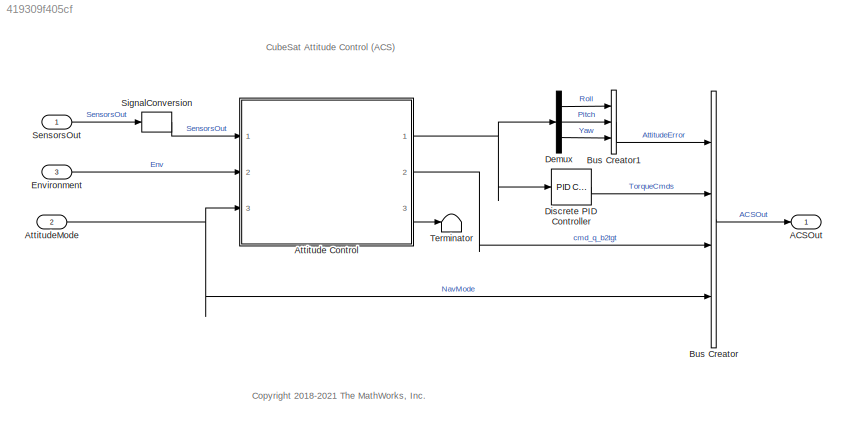
MODEL slx_419309f405cf
KIND model
CONFIG AbsTol = auto
CONFIG EnableMultiTasking = on
CONFIG FixedStep = CubeSatTimeStep
CONFIG MaxStep = auto
CONFIG MinStep = auto
CONFIG RelTol = 1e-3
CONFIG SampleTimeConstraint = Unconstrained
CONFIG SolverName = FixedStepDiscrete
CONFIG StartTime = 0.0
CONFIG StopTime = 10.0
BLOCK [Outport] ACSOut
  BusOutputAsStruct = on
  OutDataTypeStr = Bus: ACSOutBus
  PortDimensions = 1
  VectorParamsAs1DForOutWhenUnconnected = off
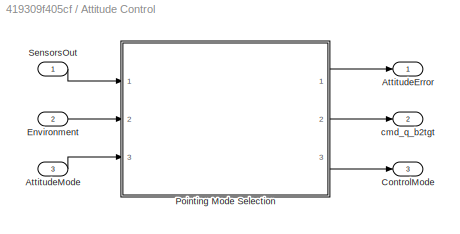
BLOCK [SubSystem] Attitude Control
  Ports = [3, 3]
  RequestExecContextInheritance = off
BLOCK [Outport] Attitude Control/ ControlMode
  Port = 3
  VectorParamsAs1DForOutWhenUnconnected = off
BLOCK [Outport] Attitude Control/AttitudeError
  VectorParamsAs1DForOutWhenUnconnected = off
BLOCK [Inport] Attitude Control/AttitudeMode 
  Port = 3
BLOCK [Inport] Attitude Control/Environment
  Port = 2
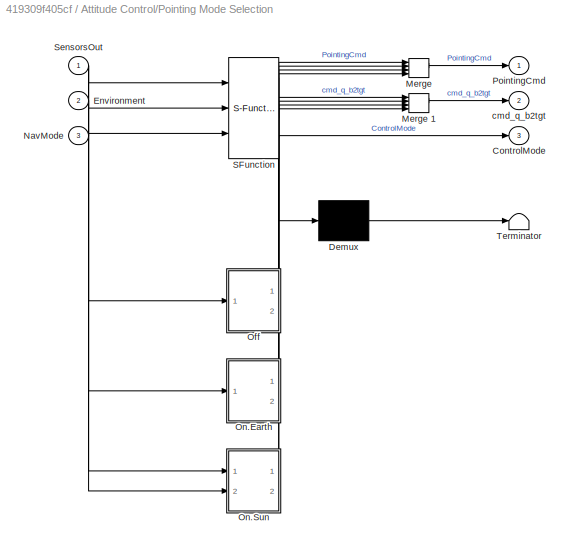
BLOCK [SubSystem] Attitude Control/Pointing Mode Selection
  ErrorFcn = Stateflow.Translate.translate
  PermitHierarchicalResolution = ExplicitOnly
  Ports = [3, 3]
  RequestExecContextInheritance = off
  SFBlockType = Chart
  TreatAsAtomicUnit = on
BLOCK [Demux] Attitude Control/Pointing Mode Selection/ Demux 
  Outputs = 1
  Ports = [1, 1]
BLOCK [Merge] Attitude Control/Pointing Mode Selection/ Merge 
  Inputs = 4
  Ports = [4, 1]
BLOCK [Merge] Attitude Control/Pointing Mode Selection/ Merge 1
  Inputs = 4
  Ports = [4, 1]
BLOCK [S-Function] Attitude Control/Pointing Mode Selection/ SFunction 
  EnableBusSupport = on
  FunctionName = sf_sfun
  PortCounts = [3 4]
  Ports = [3, 4]
  SFcnIsStateOwnerBlock = off
  SFunctionDeploymentMode = off
  Tag = Stateflow S-Function 1
BLOCK [Terminator] Attitude Control/Pointing Mode Selection/ Terminator 
BLOCK [Outport] Attitude Control/Pointing Mode Selection/ControlMode
  Port = 3
  VectorParamsAs1DForOutWhenUnconnected = off
BLOCK [Inport] Attitude Control/Pointing Mode Selection/Environment
  Port = 2
BLOCK [Inport] Attitude Control/Pointing Mode Selection/NavMode
  Port = 3
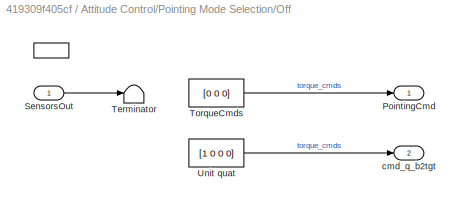
BLOCK [SubSystem] Attitude Control/Pointing Mode Selection/Off
  Ports = [1, 2, 0, 0, 0, 0, 0, 1]
  PreDeleteFcn = Stateflow.SLINSF.SimulinkMan.removePreDeleteFcn
  RequestExecContextInheritance = off
  UndoDeleteFcn = Stateflow.SLINSF.SimulinkMan.restorePreDeleteFcn
BLOCK [ActionPort] Attitude Control/Pointing Mode Selection/Off/ 
  CopyFcn = Stateflow.SLINSF.SimulinkMan.removeBlockPreDeleteFcn
  PreDeleteFcn = Stateflow.SLINSF.SimulinkMan.unsafePredeleteFcn
BLOCK [Outport] Attitude Control/Pointing Mode Selection/Off/PointingCmd
  VectorParamsAs1DForOutWhenUnconnected = off
BLOCK [Inport] Attitude Control/Pointing Mode Selection/Off/SensorsOut
  OutDataTypeStr = Bus: StatesOutBus
BLOCK [Terminator] Attitude Control/Pointing Mode Selection/Off/Terminator
BLOCK [Constant] Attitude Control/Pointing Mode Selection/Off/TorqueCmds
  Value = [0 0 0]
BLOCK [Constant] Attitude Control/Pointing Mode Selection/Off/Unit quat
  Value = [1 0 0 0]
BLOCK [Outport] Attitude Control/Pointing Mode Selection/Off/cmd_q_b2tgt
  Port = 2
  VectorParamsAs1DForOutWhenUnconnected = off
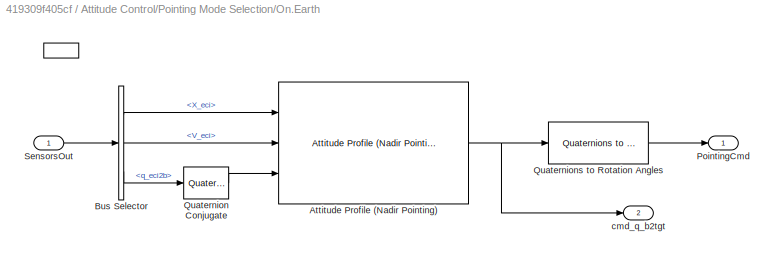
BLOCK [SubSystem] Attitude Control/Pointing Mode Selection/On.Earth
  Ports = [1, 2, 0, 0, 0, 0, 0, 1]
  PreDeleteFcn = Stateflow.SLINSF.SimulinkMan.removePreDeleteFcn
  RequestExecContextInheritance = off
  UndoDeleteFcn = Stateflow.SLINSF.SimulinkMan.restorePreDeleteFcn
BLOCK [ActionPort] Attitude Control/Pointing Mode Selection/On.Earth/ 
  CopyFcn = Stateflow.SLINSF.SimulinkMan.removeBlockPreDeleteFcn
  PreDeleteFcn = Stateflow.SLINSF.SimulinkMan.unsafePredeleteFcn
BLOCK [Reference] Attitude Control/Pointing Mode Selection/On.Earth/Attitude Profile (Nadir Pointing)  REF=aerolibsatdyn/Attitude Profile
(Nadir Pointing)
  Ports = [3, 1]
  SourceBlock = aerolibsatdyn/Attitude Profile\n(Nadir Pointing)
  SourceProductBaseCode = AE
  SourceType = Attitude Profile
BLOCK [BusSelector] Attitude Control/Pointing Mode Selection/On.Earth/Bus Selector
  OutputSignals = X_eci,V_eci,q_eci2b
  Ports = [1, 3]
BLOCK [Outport] Attitude Control/Pointing Mode Selection/On.Earth/PointingCmd
  VectorParamsAs1DForOutWhenUnconnected = off
BLOCK [Reference] Attitude Control/Pointing Mode Selection/On.Earth/Quaternion Conjugate  REF=aerolibutil/Quaternion
Conjugate
  Ports = [1, 1]
  SourceBlock = aerolibutil/Quaternion\nConjugate
  SourceProductBaseCode = AE
  SourceType = Quaternion Conjugate
BLOCK [Reference] Attitude Control/Pointing Mode Selection/On.Earth/Quaternions to Rotation Angles  REF=sharedtransform/Quaternions to Rotation Angles
  AttributesFormatString = Rotation Order: %<rotationOrder>
  Ports = [1, 1]
  SourceBlock = sharedtransform/Quaternions to Rotation Angles
  SourceProductBaseCode = AE,PW,DR,MT,VE
  SourceType = Quat2Ang
BLOCK [Inport] Attitude Control/Pointing Mode Selection/On.Earth/SensorsOut
  OutDataTypeStr = Bus: StatesOutBus
BLOCK [Outport] Attitude Control/Pointing Mode Selection/On.Earth/cmd_q_b2tgt
  Port = 2
  VectorParamsAs1DForOutWhenUnconnected = off
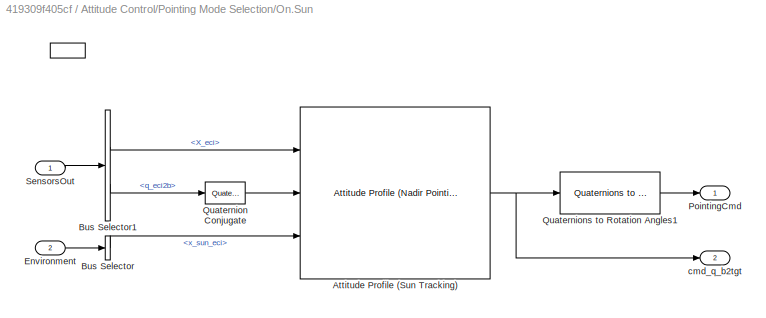
BLOCK [SubSystem] Attitude Control/Pointing Mode Selection/On.Sun
  Ports = [2, 2, 0, 0, 0, 0, 0, 1]
  PreDeleteFcn = Stateflow.SLINSF.SimulinkMan.removePreDeleteFcn
  RequestExecContextInheritance = off
  UndoDeleteFcn = Stateflow.SLINSF.SimulinkMan.restorePreDeleteFcn
BLOCK [ActionPort] Attitude Control/Pointing Mode Selection/On.Sun/ 
  CopyFcn = Stateflow.SLINSF.SimulinkMan.removeBlockPreDeleteFcn
  PreDeleteFcn = Stateflow.SLINSF.SimulinkMan.unsafePredeleteFcn
BLOCK [Reference] Attitude Control/Pointing Mode Selection/On.Sun/Attitude Profile (Sun Tracking)  REF=aerolibsatdyn/Attitude Profile
(Nadir Pointing)
  Ports = [3, 1]
  SourceBlock = aerolibsatdyn/Attitude Profile\n(Nadir Pointing)
  SourceProductBaseCode = AE
  SourceType = Attitude Profile
BLOCK [BusSelector] Attitude Control/Pointing Mode Selection/On.Sun/Bus Selector
  OutputSignals = x_sun_eci
  Ports = [1, 1]
BLOCK [BusSelector] Attitude Control/Pointing Mode Selection/On.Sun/Bus Selector1
  OutputSignals = X_eci,q_eci2b
  Ports = [1, 2]
BLOCK [Inport] Attitude Control/Pointing Mode Selection/On.Sun/Environment
  OutDataTypeStr = Bus: EnvBus
  Port = 2
BLOCK [Outport] Attitude Control/Pointing Mode Selection/On.Sun/PointingCmd
  VectorParamsAs1DForOutWhenUnconnected = off
BLOCK [Reference] Attitude Control/Pointing Mode Selection/On.Sun/Quaternion Conjugate  REF=aerolibutil/Quaternion
Conjugate
  Ports = [1, 1]
  SourceBlock = aerolibutil/Quaternion\nConjugate
  SourceProductBaseCode = AE
  SourceType = Quaternion Conjugate
BLOCK [Reference] Attitude Control/Pointing Mode Selection/On.Sun/Quaternions to Rotation Angles1  REF=sharedtransform/Quaternions to Rotation Angles
  AttributesFormatString = Rotation Order: %<rotationOrder>
  Ports = [1, 1]
  SourceBlock = sharedtransform/Quaternions to Rotation Angles
  SourceProductBaseCode = AE,PW,DR,MT,VE
  SourceType = Quat2Ang
BLOCK [Inport] Attitude Control/Pointing Mode Selection/On.Sun/SensorsOut
  OutDataTypeStr = Bus: StatesOutBus
BLOCK [Outport] Attitude Control/Pointing Mode Selection/On.Sun/cmd_q_b2tgt
  Port = 2
  VectorParamsAs1DForOutWhenUnconnected = off
BLOCK [Outport] Attitude Control/Pointing Mode Selection/PointingCmd
  VectorParamsAs1DForOutWhenUnconnected = off
BLOCK [Inport] Attitude Control/Pointing Mode Selection/SensorsOut
BLOCK [Outport] Attitude Control/Pointing Mode Selection/cmd_q_b2tgt
  Port = 2
BLOCK [Inport] Attitude Control/SensorsOut 
  OutDataTypeStr = Bus: StatesOutBus
BLOCK [Outport] Attitude Control/cmd_q_b2tgt
  Port = 2
  VectorParamsAs1DForOutWhenUnconnected = off
BLOCK [Inport] AttitudeMode
  OutDataTypeStr = double
  Port = 2
  PortDimensions = 1
  SamplingMode = Sample based
  SignalType = real
BLOCK [BusCreator] Bus Creator
  DisplayOption = bar
  InheritFromInputs = on
  Inputs = 4
  NonVirtualBus = on
  OutDataTypeStr = Bus: ACSOutBus
  Ports = [4, 1]
BLOCK [BusCreator] Bus Creator1
  DisplayOption = bar
  InheritFromInputs = on
  Inputs = 3
  OutDataTypeStr = Bus: AttitudeErrorBus
  Ports = [3, 1]
BLOCK [Demux] Demux
  Outputs = 3
  Ports = [1, 3]
BLOCK [Reference] Discrete PID Controller  REF=slpidlib/PID Controller
  Ports = [1, 1]
  SourceBlock = slpidlib/PID Controller
  SourceProductBaseCode = SL
  SourceType = PID 1dof
BLOCK [Inport] Environment
  OutDataTypeStr = Bus: EnvBus
  Port = 3
  PortDimensions = 1
  SamplingMode = Sample based
  SignalType = real
BLOCK [Inport] SensorsOut
  OutDataTypeStr = Bus: StatesOutBus
BLOCK [SignalConversion] SignalConversion
  ConversionOutput = Virtual bus
  OverrideOpt = off
BLOCK [Terminator] Terminator
ANNOTATION (root): CubeSat Attitude Control (ACS)
ANNOTATION (root): <copyright redacted>
LINE Attitude Control/AttitudeMode :1 -> Attitude Control/Pointing Mode Selection:3
LINE Attitude Control/Environment:1 -> Attitude Control/Pointing Mode Selection:2
LINE Attitude Control/Pointing Mode Selection:1 -> Attitude Control/AttitudeError:1
LINE Attitude Control/Pointing Mode Selection:2 -> Attitude Control/cmd_q_b2tgt:1
LINE Attitude Control/Pointing Mode Selection:3 -> Attitude Control/ ControlMode:1
LINE Attitude Control/SensorsOut :1 -> Attitude Control/Pointing Mode Selection:1
NET Attitude Control:1 -> Demux:1, Discrete PID Controller:1
LINE Attitude Control:2 -> Bus Creator:3
LINE Attitude Control:3 -> Terminator:1
NET AttitudeMode:1 -> Attitude Control:3, Bus Creator:4
LINE Bus Creator1:1 -> Bus Creator:1
LINE Bus Creator:1 -> ACSOut:1
LINE Demux:1 -> Bus Creator1:1
LINE Demux:2 -> Bus Creator1:2
LINE Demux:3 -> Bus Creator1:3
LINE Discrete PID Controller:1 -> Bus Creator:2
LINE Environment:1 -> Attitude Control:2
LINE SensorsOut:1 -> SignalConversion:1
LINE SignalConversion:1 -> Attitude Control:1
note: NET lines group one-source signal fan-out (src -> all destinations, sorted); 1:1 wires keep LINE
CHART Attitude Control/Pointing Mode Selection states=5 transitions=8
  STATE_LABEL 'On'
  STATE_LABEL 'Transition'
  STATE_LABEL 'Earth'
  STATE_LABEL 'Sun'
  STATE_LABEL '[NavMode == 2]\n{ControlMode = 2;}'
  STATE_LABEL '[NavMode == 1]\n{ControlMode = 1;}'
  STATE_LABEL '[NavMode == 1]\n{ControlMode = 2;}'
  STATE_LABEL '[NavMode == 2]\n{ControlMode = 1;}'
  STATE_LABEL 'Transition'
  STATE_LABEL 'Earth'
  STATE_LABEL 'Sun'
  STATE_LABEL 'Off'
CHART  states=0 transitions=0
